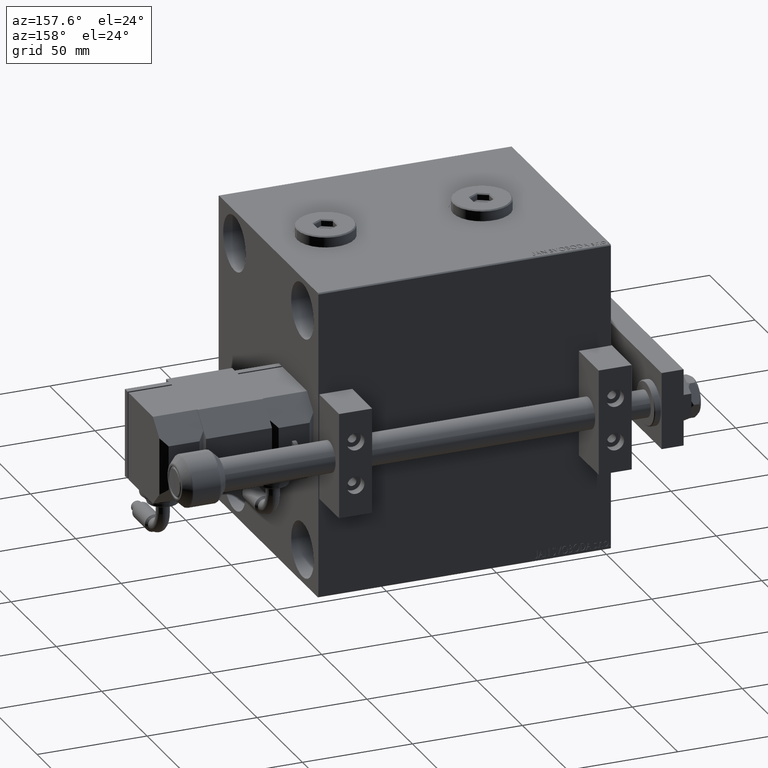
[diagram: clean part render]
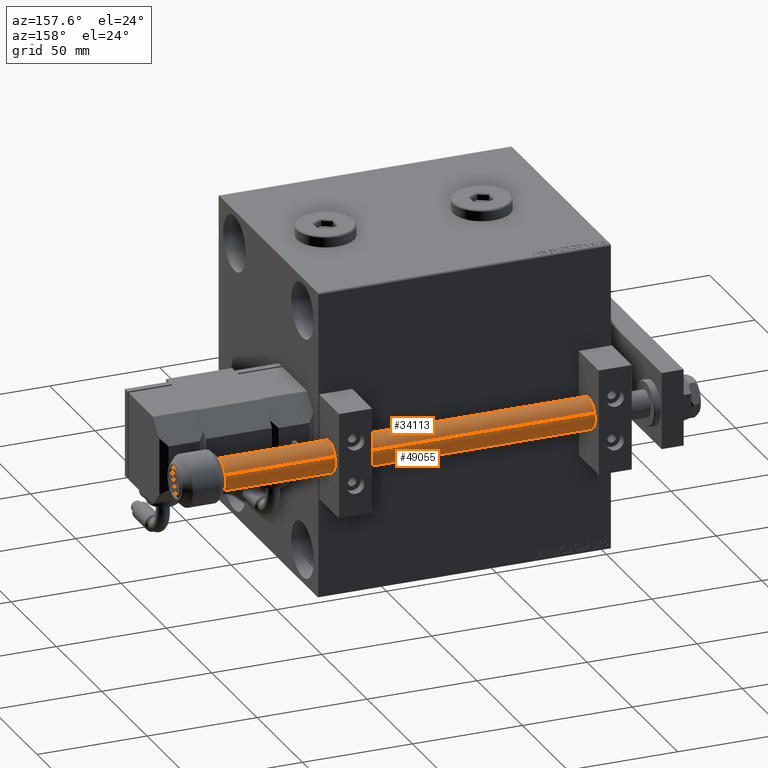
[diagram: same view with one multi-face feature highlighted, each face labeled with its STEP entity id]
A machine part, auxiliary view. The highlighted faces form ONE feature: a constant-radius fillet chain: 2 tangent blend faces with common blend radius 7 mm. The faces share edges in the B-rep.
Their STEP definitions:
[1] entity #34113 (Cylinder):
#2015 = CARTESIAN_POINT ( 'NONE',  ( 0.000000000000000000, 0.000000000000000000, 203.0000000000000000 ) ) ;
#2121 = CARTESIAN_POINT ( 'NONE',  ( 0.000000000000000000, 0.000000000000000000, 202.0000000000001137 ) ) ;
#3572 = DIRECTION ( 'NONE',  ( -1.000000000000000000, 0.000000000000000000, 0.000000000000000000 ) ) ;
#6132 = CARTESIAN_POINT ( 'NONE',  ( 7.000000000000000000, 8.572527594031471218E-16, 202.0000000000001137 ) ) ;
#7771 = EDGE_CURVE ( 'NONE', #23010, #46419, #38381, .T. ) ;
#7849 = LINE ( 'NONE', #31247, #25535 ) ;
#8289 = DIRECTION ( 'NONE',  ( 1.000000000000000000, 0.000000000000000000, 0.000000000000000000 ) ) ;
#8395 = DIRECTION ( 'NONE',  ( 0.000000000000000000, 0.000000000000000000, -1.000000000000000000 ) ) ;
#9342 = CARTESIAN_POINT ( 'NONE',  ( 0.000000000000000000, 0.000000000000000000, 2.000000000000057288 ) ) ;
#9469 = VERTEX_POINT ( 'NONE', #21082 ) ;
#9541 = EDGE_CURVE ( 'NONE', #23010, #20706, #27150, .T. ) ;
#10155 = CARTESIAN_POINT ( 'NONE',  ( 0.5000000000000001110, -6.982120021884583139, 202.0000000000000000 ) ) ;
#10354 = CARTESIAN_POINT ( 'NONE',  ( -7.000000000000000000, 0.000000000000000000, 202.0000000000001137 ) ) ;
#11603 = CARTESIAN_POINT ( 'NONE',  ( 0.000000000000000000, 0.000000000000000000, 202.0000000000001137 ) ) ;
#12275 = DIRECTION ( 'NONE',  ( -0.000000000000000000, -0.000000000000000000, 1.000000000000000000 ) ) ;
#13004 = EDGE_CURVE ( 'NONE', #9469, #46419, #25583, .T. ) ;
#14310 = DIRECTION ( 'NONE',  ( 1.000000000000000000, 0.000000000000000000, 0.000000000000000000 ) ) ;
#14449 = CARTESIAN_POINT ( 'NONE',  ( 0.000000000000000000, 0.000000000000000000, 202.0000000000001137 ) ) ;
#14517 = VECTOR ( 'NONE', #50550, 1000.000000000000000 ) ;
#16356 = EDGE_CURVE ( 'NONE', #20706, #50152, #37499, .T. ) ;
#17929 = AXIS2_PLACEMENT_3D ( 'NONE', #14449, #22147, #46556 ) ;
#20706 = VERTEX_POINT ( 'NONE', #10155 ) ;
#21011 = VERTEX_POINT ( 'NONE', #10354 ) ;
#21082 = CARTESIAN_POINT ( 'NONE',  ( -7.000000000000000000, 0.000000000000000000, 2.000000000000057288 ) ) ;
#22147 = DIRECTION ( 'NONE',  ( 0.000000000000000000, 0.000000000000000000, -1.000000000000000000 ) ) ;
#23010 = VERTEX_POINT ( 'NONE', #6132 ) ;
#23115 = CARTESIAN_POINT ( 'NONE',  ( -0.4999999999999975020, -6.982120021884583139, 202.0000000000000000 ) ) ;
#25535 = VECTOR ( 'NONE', #43702, 1000.000000000000000 ) ;
#25583 = CIRCLE ( 'NONE', #49297, 7.000000000000000000 ) ;
#25669 = ORIENTED_EDGE ( 'NONE', *, *, #32703, .T. ) ;
#25964 = ORIENTED_EDGE ( 'NONE', *, *, #13004, .T. ) ;
#27150 = CIRCLE ( 'NONE', #17929, 7.000000000000000000 ) ;
#29817 = ORIENTED_EDGE ( 'NONE', *, *, #7771, .F. ) ;
#30068 = ORIENTED_EDGE ( 'NONE', *, *, #9541, .T. ) ;
#31247 = CARTESIAN_POINT ( 'NONE',  ( -7.000000000000000000, 0.000000000000000000, 203.0000000000000000 ) ) ;
#32703 = EDGE_CURVE ( 'NONE', #50152, #21011, #37947, .T. ) ;
#33380 = CARTESIAN_POINT ( 'NONE',  ( 7.000000000000000000, 8.572527594031471218E-16, 2.000000000000057288 ) ) ;
#34113 = ADVANCED_FACE ( 'NONE', ( #47098 ), #42340, .T. ) ;
#34144 = CARTESIAN_POINT ( 'NONE',  ( 7.000000000000000000, 8.572527594031471218E-16, 203.0000000000000000 ) ) ;
#34395 = DIRECTION ( 'NONE',  ( -0.000000000000000000, -0.000000000000000000, -1.000000000000000000 ) ) ;
#34596 = ORIENTED_EDGE ( 'NONE', *, *, #47370, .T. ) ;
#37499 = CIRCLE ( 'NONE', #51036, 7.000000000000000000 ) ;
#37947 = CIRCLE ( 'NONE', #46410, 7.000000000000000000 ) ;
#38381 = LINE ( 'NONE', #34144, #14517 ) ;
#40258 = DIRECTION ( 'NONE',  ( 1.000000000000000000, 0.000000000000000000, 0.000000000000000000 ) ) ;
#40496 = AXIS2_PLACEMENT_3D ( 'NONE', #2015, #34395, #3572 ) ;
#42340 = CYLINDRICAL_SURFACE ( 'NONE', #40496, 7.000000000000000000 ) ;
#43058 = EDGE_LOOP ( 'NONE', ( #29817, #30068, #45099, #25669, #34596, #25964 ) ) ;
#43702 = DIRECTION ( 'NONE',  ( -0.000000000000000000, -0.000000000000000000, -1.000000000000000000 ) ) ;
#45099 = ORIENTED_EDGE ( 'NONE', *, *, #16356, .T. ) ;
#46410 = AXIS2_PLACEMENT_3D ( 'NONE', #2121, #46685, #14310 ) ;
#46419 = VERTEX_POINT ( 'NONE', #33380 ) ;
#46556 = DIRECTION ( 'NONE',  ( 1.000000000000000000, 0.000000000000000000, 0.000000000000000000 ) ) ;
#46685 = DIRECTION ( 'NONE',  ( 0.000000000000000000, 0.000000000000000000, -1.000000000000000000 ) ) ;
#47098 = FACE_OUTER_BOUND ( 'NONE', #43058, .T. ) ;
#47370 = EDGE_CURVE ( 'NONE', #21011, #9469, #7849, .T. ) ;
#49297 = AXIS2_PLACEMENT_3D ( 'NONE', #9342, #12275, #8289 ) ;
#50152 = VERTEX_POINT ( 'NONE', #23115 ) ;
#50550 = DIRECTION ( 'NONE',  ( -0.000000000000000000, -0.000000000000000000, -1.000000000000000000 ) ) ;
#51036 = AXIS2_PLACEMENT_3D ( 'NONE', #11603, #8395, #40258 ) ;
[2] entity #49055 (Cylinder):
#1969 = CYLINDRICAL_SURFACE ( 'NONE', #20521, 7.000000000000000000 ) ;
#2038 = CIRCLE ( 'NONE', #12169, 7.000000000000000000 ) ;
#2236 = DIRECTION ( 'NONE',  ( 1.000000000000000000, 0.000000000000000000, 0.000000000000000000 ) ) ;
#6132 = CARTESIAN_POINT ( 'NONE',  ( 7.000000000000000000, 8.572527594031471218E-16, 202.0000000000001137 ) ) ;
#6495 = ORIENTED_EDGE ( 'NONE', *, *, #20168, .T. ) ;
#6685 = VERTEX_POINT ( 'NONE', #48389 ) ;
#6720 = CARTESIAN_POINT ( 'NONE',  ( 0.000000000000000000, 0.000000000000000000, 2.000000000000057288 ) ) ;
#7771 = EDGE_CURVE ( 'NONE', #23010, #46419, #38381, .T. ) ;
#7849 = LINE ( 'NONE', #31247, #25535 ) ;
#9469 = VERTEX_POINT ( 'NONE', #21082 ) ;
#10354 = CARTESIAN_POINT ( 'NONE',  ( -7.000000000000000000, 0.000000000000000000, 202.0000000000001137 ) ) ;
#11236 = CIRCLE ( 'NONE', #40895, 7.000000000000000000 ) ;
#12169 = AXIS2_PLACEMENT_3D ( 'NONE', #24053, #15561, #15302 ) ;
#14517 = VECTOR ( 'NONE', #50550, 1000.000000000000000 ) ;
#14684 = CARTESIAN_POINT ( 'NONE',  ( 0.000000000000000000, 0.000000000000000000, 203.0000000000000000 ) ) ;
#15302 = DIRECTION ( 'NONE',  ( 1.000000000000000000, 8.881784197001252323E-16, 0.000000000000000000 ) ) ;
#15462 = DIRECTION ( 'NONE',  ( 1.000000000000000000, -1.421085471520200372E-14, 0.000000000000000000 ) ) ;
#15561 = DIRECTION ( 'NONE',  ( 0.000000000000000000, 0.000000000000000000, -1.000000000000000000 ) ) ;
#16887 = ORIENTED_EDGE ( 'NONE', *, *, #17000, .T. ) ;
#16951 = EDGE_CURVE ( 'NONE', #33646, #23010, #27353, .T. ) ;
#17000 = EDGE_CURVE ( 'NONE', #46419, #9469, #11236, .T. ) ;
#18562 = CARTESIAN_POINT ( 'NONE',  ( 0.4999999999999921174, 6.982120021884471228, 202.0000000000001137 ) ) ;
#20168 = EDGE_CURVE ( 'NONE', #21011, #6685, #2038, .T. ) ;
#20306 = ORIENTED_EDGE ( 'NONE', *, *, #27291, .T. ) ;
#20521 = AXIS2_PLACEMENT_3D ( 'NONE', #14684, #30900, #30118 ) ;
#20794 = CIRCLE ( 'NONE', #35234, 7.000000000000000000 ) ;
#21011 = VERTEX_POINT ( 'NONE', #10354 ) ;
#21082 = CARTESIAN_POINT ( 'NONE',  ( -7.000000000000000000, 0.000000000000000000, 2.000000000000057288 ) ) ;
#22919 = DIRECTION ( 'NONE',  ( 0.000000000000000000, 0.000000000000000000, -1.000000000000000000 ) ) ;
#23010 = VERTEX_POINT ( 'NONE', #6132 ) ;
#24053 = CARTESIAN_POINT ( 'NONE',  ( 0.000000000000000000, 0.000000000000000000, 202.0000000000001137 ) ) ;
#25535 = VECTOR ( 'NONE', #43702, 1000.000000000000000 ) ;
#26478 = AXIS2_PLACEMENT_3D ( 'NONE', #51029, #22919, #2236 ) ;
#27291 = EDGE_CURVE ( 'NONE', #6685, #33646, #20794, .T. ) ;
#27353 = CIRCLE ( 'NONE', #26478, 7.000000000000000000 ) ;
#29020 = ORIENTED_EDGE ( 'NONE', *, *, #47370, .F. ) ;
#30118 = DIRECTION ( 'NONE',  ( -1.000000000000000000, 0.000000000000000000, 0.000000000000000000 ) ) ;
#30378 = DIRECTION ( 'NONE',  ( 1.000000000000000000, 0.000000000000000000, 0.000000000000000000 ) ) ;
#30900 = DIRECTION ( 'NONE',  ( -0.000000000000000000, -0.000000000000000000, -1.000000000000000000 ) ) ;
#31247 = CARTESIAN_POINT ( 'NONE',  ( -7.000000000000000000, 0.000000000000000000, 203.0000000000000000 ) ) ;
#32007 = EDGE_LOOP ( 'NONE', ( #33588, #50802, #16887, #29020, #6495, #20306 ) ) ;
#33380 = CARTESIAN_POINT ( 'NONE',  ( 7.000000000000000000, 8.572527594031471218E-16, 2.000000000000057288 ) ) ;
#33588 = ORIENTED_EDGE ( 'NONE', *, *, #16951, .T. ) ;
#33646 = VERTEX_POINT ( 'NONE', #18562 ) ;
#34144 = CARTESIAN_POINT ( 'NONE',  ( 7.000000000000000000, 8.572527594031471218E-16, 203.0000000000000000 ) ) ;
#34612 = FACE_OUTER_BOUND ( 'NONE', #32007, .T. ) ;
#35234 = AXIS2_PLACEMENT_3D ( 'NONE', #43084, #47568, #15462 ) ;
#38381 = LINE ( 'NONE', #34144, #14517 ) ;
#40895 = AXIS2_PLACEMENT_3D ( 'NONE', #6720, #47310, #30378 ) ;
#43084 = CARTESIAN_POINT ( 'NONE',  ( 0.000000000000000000, 0.000000000000000000, 202.0000000000001137 ) ) ;
#43702 = DIRECTION ( 'NONE',  ( -0.000000000000000000, -0.000000000000000000, -1.000000000000000000 ) ) ;
#46419 = VERTEX_POINT ( 'NONE', #33380 ) ;
#47310 = DIRECTION ( 'NONE',  ( -0.000000000000000000, -0.000000000000000000, 1.000000000000000000 ) ) ;
#47370 = EDGE_CURVE ( 'NONE', #21011, #9469, #7849, .T. ) ;
#47568 = DIRECTION ( 'NONE',  ( 0.000000000000000000, 0.000000000000000000, -1.000000000000000000 ) ) ;
#48389 = CARTESIAN_POINT ( 'NONE',  ( -0.4999999999999992784, 6.982120021884583139, 202.0000000000000000 ) ) ;
#49055 = ADVANCED_FACE ( 'NONE', ( #34612 ), #1969, .T. ) ;
#50550 = DIRECTION ( 'NONE',  ( -0.000000000000000000, -0.000000000000000000, -1.000000000000000000 ) ) ;
#50802 = ORIENTED_EDGE ( 'NONE', *, *, #7771, .T. ) ;
#51029 = CARTESIAN_POINT ( 'NONE',  ( 0.000000000000000000, 0.000000000000000000, 202.0000000000001137 ) ) ;